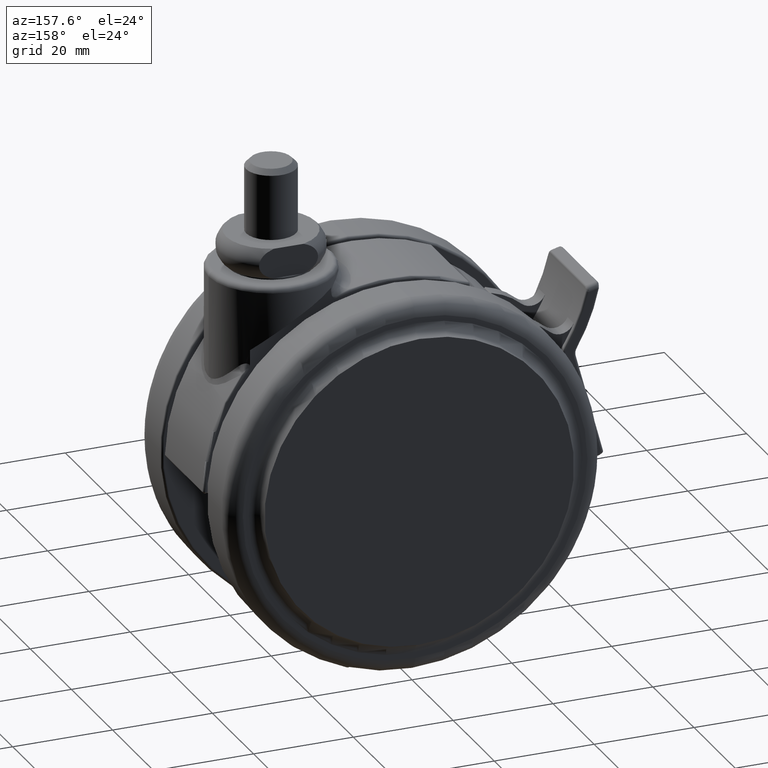
[diagram: clean part render]
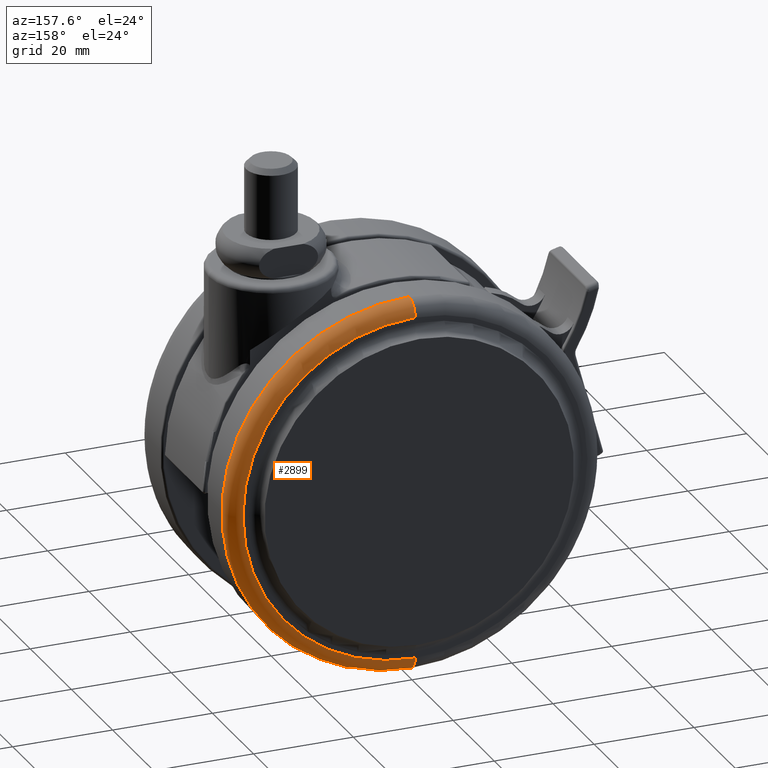
[diagram: same view with one face highlighted and labeled with its STEP entity id]
A machine part, auxiliary view. The second image highlights one B-rep face of the part: STEP entity #2899.
In plain terms, the highlighted toroidal blend (fillet) surface has major radius 34.5 mm and minor (blend) radius 3 mm.
Its self-contained STEP definition (entity closure, byte-faithful):
#282 = CIRCLE ( 'NONE', #2113, 2.999999999999999100 ) ;
#646 = CARTESIAN_POINT ( 'NONE',  ( -20.00000000000000000, 18.50000000000000000, -75.00000000000001400 ) ) ;
#1121 = VERTEX_POINT ( 'NONE', #6033 ) ;
#1320 = CARTESIAN_POINT ( 'NONE',  ( -20.00000000000000400, 18.50000000000000000, -5.999999999999998200 ) ) ;
#1327 = DIRECTION ( 'NONE',  ( 1.156482317317871700E-015, 1.000000000000000000, 0.0000000000000000000 ) ) ;
#1427 = VERTEX_POINT ( 'NONE', #6618 ) ;
#1642 = EDGE_CURVE ( 'NONE', #3741, #1121, #1816, .T. ) ;
#1684 = ORIENTED_EDGE ( 'NONE', *, *, #4278, .T. ) ;
#1722 = DIRECTION ( 'NONE',  ( -1.156482317317871700E-015, -1.000000000000000000, 0.0000000000000000000 ) ) ;
#1816 = CIRCLE ( 'NONE', #7655, 2.999999999999999100 ) ;
#2104 = ORIENTED_EDGE ( 'NONE', *, *, #5217, .T. ) ;
#2113 = AXIS2_PLACEMENT_3D ( 'NONE', #646, #5368, #1327 ) ;
#2160 = AXIS2_PLACEMENT_3D ( 'NONE', #6647, #2599, #7317 ) ;
#2599 = DIRECTION ( 'NONE',  ( -1.505161159488250100E-015, -1.000000000000000000, 0.0000000000000000000 ) ) ;
#2743 = TOROIDAL_SURFACE ( 'NONE', #3606, 34.50000000000000000, 3.000000000000000000 ) ;
#2899 = ADVANCED_FACE ( 'NONE', ( #4296 ), #2743, .T. ) ;
#3043 = CIRCLE ( 'NONE', #2160, 37.50000000000000000 ) ;
#3131 = CIRCLE ( 'NONE', #4912, 34.50000000000000700 ) ;
#3598 = EDGE_CURVE ( 'NONE', #3610, #3741, #3043, .T. ) ;
#3606 = AXIS2_PLACEMENT_3D ( 'NONE', #4385, #7099, #5758 ) ;
#3610 = VERTEX_POINT ( 'NONE', #4591 ) ;
#3672 = DIRECTION ( 'NONE',  ( -1.505161159488250100E-015, -1.000000000000000000, 0.0000000000000000000 ) ) ;
#3741 = VERTEX_POINT ( 'NONE', #5319 ) ;
#4278 = EDGE_CURVE ( 'NONE', #3610, #1427, #282, .T. ) ;
#4296 = FACE_OUTER_BOUND ( 'NONE', #5864, .T. ) ;
#4385 = CARTESIAN_POINT ( 'NONE',  ( -20.00000000000000000, 18.50000000000000000, -40.50000000000000000 ) ) ;
#4591 = CARTESIAN_POINT ( 'NONE',  ( -20.00000000000000000, 18.50000000000000000, -78.00000000000001400 ) ) ;
#4912 = AXIS2_PLACEMENT_3D ( 'NONE', #7745, #3672, #8412 ) ;
#5038 = DIRECTION ( 'NONE',  ( -1.000000000000000000, 1.505161159488250100E-015, -1.224646799147353200E-016 ) ) ;
#5217 = EDGE_CURVE ( 'NONE', #1427, #1121, #3131, .T. ) ;
#5319 = CARTESIAN_POINT ( 'NONE',  ( -20.00000000000000400, 18.50000000000000000, -3.000000000000000400 ) ) ;
#5368 = DIRECTION ( 'NONE',  ( 1.000000000000000000, -1.505161159488250100E-015, 0.0000000000000000000 ) ) ;
#5758 = DIRECTION ( 'NONE',  ( 0.0000000000000000000, 0.0000000000000000000, -1.000000000000000000 ) ) ;
#5864 = EDGE_LOOP ( 'NONE', ( #6702, #6411, #1684, #2104 ) ) ;
#6033 = CARTESIAN_POINT ( 'NONE',  ( -20.00000000000000400, 21.50000000000000000, -5.999999999999998200 ) ) ;
#6411 = ORIENTED_EDGE ( 'NONE', *, *, #3598, .F. ) ;
#6618 = CARTESIAN_POINT ( 'NONE',  ( -20.00000000000000000, 21.50000000000000000, -75.00000000000001400 ) ) ;
#6647 = CARTESIAN_POINT ( 'NONE',  ( -20.00000000000000000, 18.50000000000000000, -40.50000000000000000 ) ) ;
#6702 = ORIENTED_EDGE ( 'NONE', *, *, #1642, .F. ) ;
#7099 = DIRECTION ( 'NONE',  ( 1.505161159488250100E-015, 1.000000000000000000, 0.0000000000000000000 ) ) ;
#7317 = DIRECTION ( 'NONE',  ( 0.0000000000000000000, 0.0000000000000000000, -1.000000000000000000 ) ) ;
#7655 = AXIS2_PLACEMENT_3D ( 'NONE', #1320, #5038, #1722 ) ;
#7745 = CARTESIAN_POINT ( 'NONE',  ( -20.00000000000000000, 21.50000000000000000, -40.50000000000000000 ) ) ;
#8412 = DIRECTION ( 'NONE',  ( 0.0000000000000000000, 0.0000000000000000000, -1.000000000000000000 ) ) ;